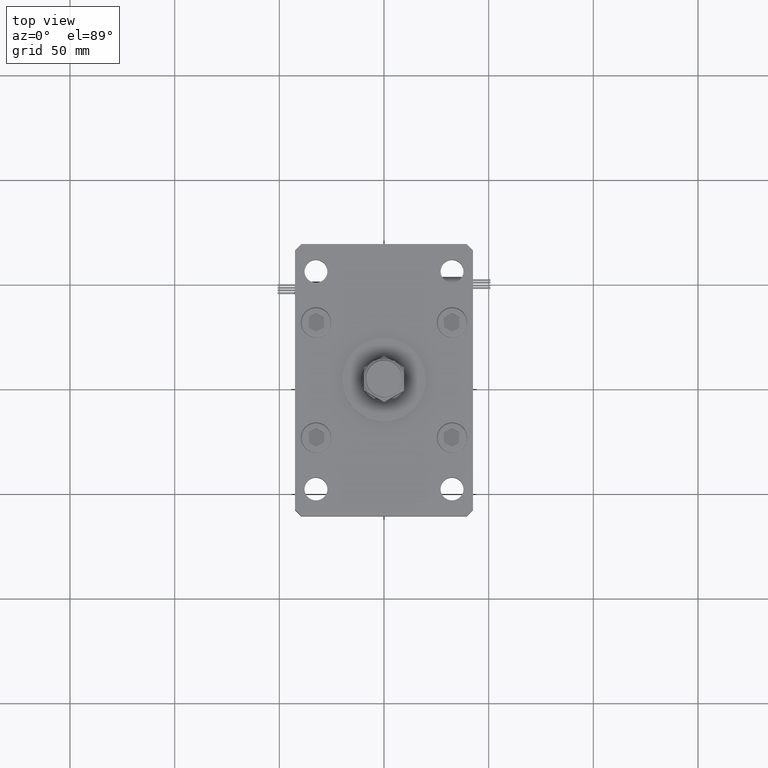
[diagram: clean part render]
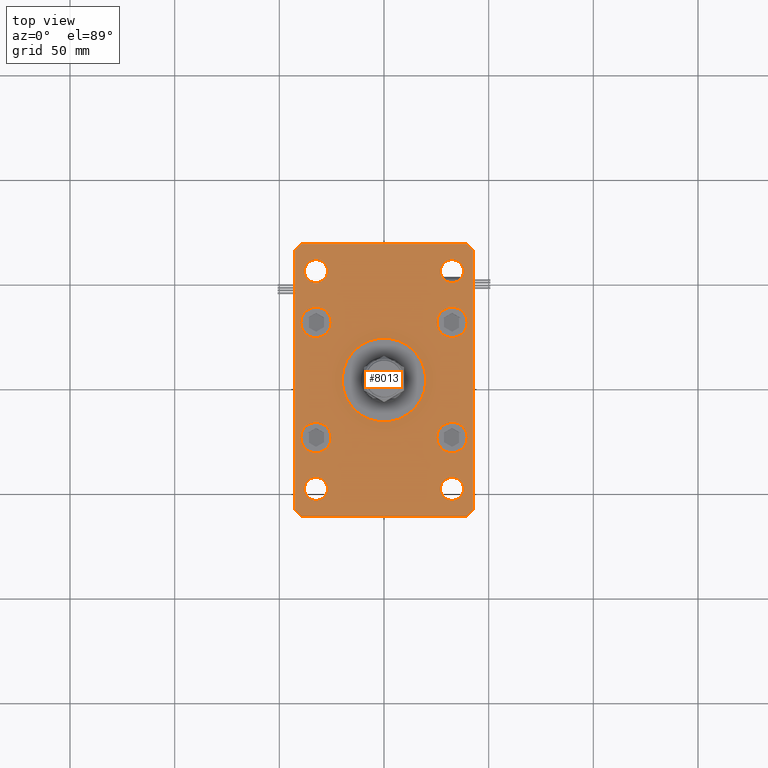
[diagram: same view with one face highlighted and labeled with its STEP entity id]
A machine part, top view. The second image highlights one B-rep face of the part: STEP entity #8013.
In plain terms, the highlighted planar face has unit normal (0, 0, 1).
Its self-contained STEP definition (entity closure, byte-faithful):
#141 = VECTOR ( 'NONE', #13035, 1000.000000000000000 ) ;
#248 = EDGE_CURVE ( 'NONE', #14208, #16014, #50137, .T. ) ;
#966 = CIRCLE ( 'NONE', #33887, 5.499999999999994671 ) ;
#1016 = AXIS2_PLACEMENT_3D ( 'NONE', #2880, #20852, #32933 ) ;
#1713 = FACE_BOUND ( 'NONE', #53152, .T. ) ;
#2161 = VERTEX_POINT ( 'NONE', #12271 ) ;
#2808 = CARTESIAN_POINT ( 'NONE',  ( -25.25000000000000000, -27.50000000000000000, 15.00000000000000000 ) ) ;
#2880 = CARTESIAN_POINT ( 'NONE',  ( 0.000000000000000000, 0.000000000000000000, 15.00000000000000000 ) ) ;
#3699 = AXIS2_PLACEMENT_3D ( 'NONE', #32445, #8614, #44539 ) ;
#3769 = DIRECTION ( 'NONE',  ( 1.000000000000000000, 0.000000000000000000, 0.000000000000000000 ) ) ;
#4337 = AXIS2_PLACEMENT_3D ( 'NONE', #38379, #37804, #28646 ) ;
#4350 = DIRECTION ( 'NONE',  ( 1.000000000000000000, 0.000000000000000000, 0.000000000000000000 ) ) ;
#4986 = DIRECTION ( 'NONE',  ( 0.000000000000000000, 0.000000000000000000, 1.000000000000000000 ) ) ;
#5238 = CARTESIAN_POINT ( 'NONE',  ( 25.25000000000000000, -27.50000000000000000, 15.00000000000000000 ) ) ;
#5364 = AXIS2_PLACEMENT_3D ( 'NONE', #5559, #4986, #37669 ) ;
#5413 = DIRECTION ( 'NONE',  ( 0.000000000000000000, 0.000000000000000000, 1.000000000000000000 ) ) ;
#5559 = CARTESIAN_POINT ( 'NONE',  ( 32.50000000000000000, 51.99999999999999289, 15.00000000000000000 ) ) ;
#6078 = DIRECTION ( 'NONE',  ( 0.000000000000000000, 0.000000000000000000, 1.000000000000000000 ) ) ;
#6482 = VECTOR ( 'NONE', #9482, 1000.000000000000000 ) ;
#6699 = AXIS2_PLACEMENT_3D ( 'NONE', #18077, #9207, #36026 ) ;
#6705 = FACE_BOUND ( 'NONE', #24073, .T. ) ;
#6723 = VERTEX_POINT ( 'NONE', #24141 ) ;
#7283 = FACE_BOUND ( 'NONE', #29444, .T. ) ;
#7587 = AXIS2_PLACEMENT_3D ( 'NONE', #22107, #13849, #40066 ) ;
#8013 = ADVANCED_FACE ( 'NONE', ( #50929, #1713, #37942, #10553, #15272, #29075, #7283, #25231, #38225, #6705 ), #46486, .T. ) ;
#8110 = CARTESIAN_POINT ( 'NONE',  ( 37.99999999999997868, -52.00000000000000711, 15.00000000000000000 ) ) ;
#8373 = DIRECTION ( 'NONE',  ( -0.7071067811865466846, -0.7071067811865483499, 0.000000000000000000 ) ) ;
#8614 = DIRECTION ( 'NONE',  ( 0.000000000000000000, 0.000000000000000000, 1.000000000000000000 ) ) ;
#8795 = ORIENTED_EDGE ( 'NONE', *, *, #13556, .T. ) ;
#9207 = DIRECTION ( 'NONE',  ( 0.000000000000000000, 0.000000000000000000, 1.000000000000000000 ) ) ;
#9356 = CARTESIAN_POINT ( 'NONE',  ( 42.50000000000000000, 62.00000000000000711, 15.00000000000000000 ) ) ;
#9482 = DIRECTION ( 'NONE',  ( 0.7071067811865483499, -0.7071067811865466846, 0.000000000000000000 ) ) ;
#9511 = CARTESIAN_POINT ( 'NONE',  ( 42.50000000000000000, -61.99999999999988631, 15.00000000000000000 ) ) ;
#9601 = ORIENTED_EDGE ( 'NONE', *, *, #23458, .T. ) ;
#9925 = DIRECTION ( 'NONE',  ( 0.000000000000000000, 0.000000000000000000, 1.000000000000000000 ) ) ;
#10478 = ORIENTED_EDGE ( 'NONE', *, *, #48572, .F. ) ;
#10553 = FACE_BOUND ( 'NONE', #50377, .T. ) ;
#10674 = DIRECTION ( 'NONE',  ( 0.000000000000000000, 0.000000000000000000, 1.000000000000000000 ) ) ;
#10941 = AXIS2_PLACEMENT_3D ( 'NONE', #41430, #6078, #24028 ) ;
#11508 = AXIS2_PLACEMENT_3D ( 'NONE', #17260, #48757, #53473 ) ;
#12061 = VERTEX_POINT ( 'NONE', #34675 ) ;
#12271 = CARTESIAN_POINT ( 'NONE',  ( 42.50000000000000000, 62.00000000000000711, 15.00000000000000000 ) ) ;
#12422 = CARTESIAN_POINT ( 'NONE',  ( -39.50000000000003553, 65.00000000000000000, 15.00000000000000000 ) ) ;
#12433 = CIRCLE ( 'NONE', #11508, 20.00000000000000000 ) ;
#12742 = ORIENTED_EDGE ( 'NONE', *, *, #36511, .F. ) ;
#12988 = ORIENTED_EDGE ( 'NONE', *, *, #58063, .F. ) ;
#13035 = DIRECTION ( 'NONE',  ( 1.000000000000000000, 1.405345600791337191E-15, 0.000000000000000000 ) ) ;
#13055 = AXIS2_PLACEMENT_3D ( 'NONE', #15876, #51824, #3769 ) ;
#13556 = EDGE_CURVE ( 'NONE', #49681, #42562, #37812, .T. ) ;
#13753 = DIRECTION ( 'NONE',  ( 0.000000000000000000, 0.000000000000000000, 1.000000000000000000 ) ) ;
#13849 = DIRECTION ( 'NONE',  ( 0.000000000000000000, 0.000000000000000000, 1.000000000000000000 ) ) ;
#14208 = VERTEX_POINT ( 'NONE', #24678 ) ;
#14269 = CARTESIAN_POINT ( 'NONE',  ( 39.50000000000002842, 65.00000000000002842, 15.00000000000000000 ) ) ;
#14351 = AXIS2_PLACEMENT_3D ( 'NONE', #20916, #29729, #57150 ) ;
#14436 = EDGE_CURVE ( 'NONE', #45788, #12061, #53991, .T. ) ;
#14683 = AXIS2_PLACEMENT_3D ( 'NONE', #50440, #27728, #41882 ) ;
#14687 = ORIENTED_EDGE ( 'NONE', *, *, #43621, .F. ) ;
#14810 = AXIS2_PLACEMENT_3D ( 'NONE', #55439, #24754, #24467 ) ;
#15272 = FACE_BOUND ( 'NONE', #17274, .T. ) ;
#15520 = CARTESIAN_POINT ( 'NONE',  ( 27.00000000000001421, 51.99999999999999289, 15.00000000000000000 ) ) ;
#15654 = VECTOR ( 'NONE', #51105, 1000.000000000000000 ) ;
#15876 = CARTESIAN_POINT ( 'NONE',  ( 32.50000000000000000, 51.99999999999999289, 15.00000000000000000 ) ) ;
#16014 = VERTEX_POINT ( 'NONE', #47984 ) ;
#16167 = CARTESIAN_POINT ( 'NONE',  ( 37.99999999999999289, 51.99999999999999289, 15.00000000000000000 ) ) ;
#16512 = LINE ( 'NONE', #40468, #57237 ) ;
#16549 = CIRCLE ( 'NONE', #57005, 5.499999999999998224 ) ;
#16803 = ORIENTED_EDGE ( 'NONE', *, *, #21861, .F. ) ;
#16839 = EDGE_CURVE ( 'NONE', #2161, #50235, #17352, .T. ) ;
#17260 = CARTESIAN_POINT ( 'NONE',  ( 0.000000000000000000, 0.000000000000000000, 15.00000000000000000 ) ) ;
#17274 = EDGE_LOOP ( 'NONE', ( #51785, #12988 ) ) ;
#17352 = LINE ( 'NONE', #9356, #43749 ) ;
#18077 = CARTESIAN_POINT ( 'NONE',  ( -32.50000000000000000, 52.00000000000000000, 15.00000000000000000 ) ) ;
#18391 = EDGE_CURVE ( 'NONE', #42562, #2161, #23630, .T. ) ;
#18489 = VECTOR ( 'NONE', #58016, 1000.000000000000000 ) ;
#18788 = ORIENTED_EDGE ( 'NONE', *, *, #46485, .F. ) ;
#18870 = CIRCLE ( 'NONE', #7587, 7.249999999999999112 ) ;
#18976 = CARTESIAN_POINT ( 'NONE',  ( -32.49999999999997868, -52.00000000000000711, 15.00000000000000000 ) ) ;
#19734 = CARTESIAN_POINT ( 'NONE',  ( 39.50000000000001421, -64.99999999999988631, 15.00000000000000000 ) ) ;
#19763 = EDGE_LOOP ( 'NONE', ( #39645, #42068 ) ) ;
#19784 = CARTESIAN_POINT ( 'NONE',  ( 32.50000000000000000, -27.50000000000000000, 15.00000000000000000 ) ) ;
#19960 = EDGE_CURVE ( 'NONE', #54664, #14208, #21201, .T. ) ;
#20014 = VERTEX_POINT ( 'NONE', #40306 ) ;
#20110 = ORIENTED_EDGE ( 'NONE', *, *, #248, .T. ) ;
#20304 = VECTOR ( 'NONE', #27456, 1000.000000000000000 ) ;
#20456 = CARTESIAN_POINT ( 'NONE',  ( 20.00000000000000000, 2.449293598294706513E-15, 15.00000000000000000 ) ) ;
#20708 = VERTEX_POINT ( 'NONE', #2808 ) ;
#20852 = DIRECTION ( 'NONE',  ( 0.000000000000000000, 0.000000000000000000, 1.000000000000000000 ) ) ;
#20916 = CARTESIAN_POINT ( 'NONE',  ( 32.50000000000000000, 27.50000000000000000, 15.00000000000000000 ) ) ;
#21201 = LINE ( 'NONE', #39446, #18489 ) ;
#21861 = EDGE_CURVE ( 'NONE', #30854, #27908, #26983, .T. ) ;
#22107 = CARTESIAN_POINT ( 'NONE',  ( -32.50000000000000000, -27.50000000000000000, 15.00000000000000000 ) ) ;
#22196 = CIRCLE ( 'NONE', #10941, 5.499999999999994671 ) ;
#22364 = CIRCLE ( 'NONE', #55315, 7.249999999999999112 ) ;
#22599 = EDGE_CURVE ( 'NONE', #50563, #37079, #27030, .T. ) ;
#22855 = ORIENTED_EDGE ( 'NONE', *, *, #42804, .F. ) ;
#23085 = CARTESIAN_POINT ( 'NONE',  ( -39.75000000000000000, -27.50000000000000000, 15.00000000000000000 ) ) ;
#23458 = EDGE_CURVE ( 'NONE', #54783, #54664, #16512, .T. ) ;
#23630 = LINE ( 'NONE', #9511, #20304 ) ;
#24028 = DIRECTION ( 'NONE',  ( 1.000000000000000000, 0.000000000000000000, 0.000000000000000000 ) ) ;
#24073 = EDGE_LOOP ( 'NONE', ( #22855, #30311 ) ) ;
#24141 = CARTESIAN_POINT ( 'NONE',  ( -38.00000000000000000, 52.00000000000000000, 15.00000000000000000 ) ) ;
#24467 = DIRECTION ( 'NONE',  ( 1.000000000000000000, 0.000000000000000000, 0.000000000000000000 ) ) ;
#24678 = CARTESIAN_POINT ( 'NONE',  ( -42.49999999999999289, -62.00000000000001421, 15.00000000000000000 ) ) ;
#24754 = DIRECTION ( 'NONE',  ( 0.000000000000000000, 0.000000000000000000, 1.000000000000000000 ) ) ;
#24938 = CARTESIAN_POINT ( 'NONE',  ( 32.49999999999997868, -52.00000000000000711, 15.00000000000000000 ) ) ;
#25037 = DIRECTION ( 'NONE',  ( 1.000000000000000000, 0.000000000000000000, 0.000000000000000000 ) ) ;
#25231 = FACE_BOUND ( 'NONE', #58202, .T. ) ;
#25400 = DIRECTION ( 'NONE',  ( 0.7071067811865459074, 0.7071067811865491270, 0.000000000000000000 ) ) ;
#25737 = VERTEX_POINT ( 'NONE', #8110 ) ;
#25968 = DIRECTION ( 'NONE',  ( 1.000000000000000000, 0.000000000000000000, 0.000000000000000000 ) ) ;
#26520 = CIRCLE ( 'NONE', #14351, 7.249999999999999112 ) ;
#26983 = CIRCLE ( 'NONE', #5364, 5.499999999999991118 ) ;
#27030 = CIRCLE ( 'NONE', #43954, 7.249999999999999112 ) ;
#27456 = DIRECTION ( 'NONE',  ( 0.000000000000000000, 1.000000000000000000, 0.000000000000000000 ) ) ;
#27728 = DIRECTION ( 'NONE',  ( 0.000000000000000000, 0.000000000000000000, 1.000000000000000000 ) ) ;
#27908 = VERTEX_POINT ( 'NONE', #16167 ) ;
#28646 = DIRECTION ( 'NONE',  ( 1.000000000000000000, 0.000000000000000000, 0.000000000000000000 ) ) ;
#28978 = ORIENTED_EDGE ( 'NONE', *, *, #22599, .F. ) ;
#29065 = ORIENTED_EDGE ( 'NONE', *, *, #38036, .F. ) ;
#29075 = FACE_OUTER_BOUND ( 'NONE', #50194, .T. ) ;
#29444 = EDGE_LOOP ( 'NONE', ( #16803, #32576 ) ) ;
#29446 = CARTESIAN_POINT ( 'NONE',  ( 42.50000000000000000, -61.99999999999988631, 15.00000000000000000 ) ) ;
#29624 = EDGE_CURVE ( 'NONE', #27908, #30854, #34710, .T. ) ;
#29729 = DIRECTION ( 'NONE',  ( 0.000000000000000000, 0.000000000000000000, 1.000000000000000000 ) ) ;
#30311 = ORIENTED_EDGE ( 'NONE', *, *, #51417, .F. ) ;
#30854 = VERTEX_POINT ( 'NONE', #15520 ) ;
#30991 = CARTESIAN_POINT ( 'NONE',  ( -39.50000000000000000, -65.00000000000000000, 15.00000000000000000 ) ) ;
#31839 = VERTEX_POINT ( 'NONE', #45790 ) ;
#31894 = CARTESIAN_POINT ( 'NONE',  ( -25.25000000000000711, 27.50000000000000000, 15.00000000000000000 ) ) ;
#32271 = VERTEX_POINT ( 'NONE', #47606 ) ;
#32445 = CARTESIAN_POINT ( 'NONE',  ( 32.49999999999997868, -52.00000000000000711, 15.00000000000000000 ) ) ;
#32576 = ORIENTED_EDGE ( 'NONE', *, *, #29624, .F. ) ;
#32833 = CIRCLE ( 'NONE', #3699, 5.499999999999998224 ) ;
#32933 = DIRECTION ( 'NONE',  ( 1.000000000000000000, 0.000000000000000000, -0.000000000000000000 ) ) ;
#33006 = EDGE_CURVE ( 'NONE', #46100, #33132, #48931, .T. ) ;
#33132 = VERTEX_POINT ( 'NONE', #39342 ) ;
#33703 = ORIENTED_EDGE ( 'NONE', *, *, #35965, .T. ) ;
#33760 = EDGE_CURVE ( 'NONE', #43801, #20708, #18870, .T. ) ;
#33887 = AXIS2_PLACEMENT_3D ( 'NONE', #18976, #5413, #25968 ) ;
#34239 = EDGE_CURVE ( 'NONE', #20014, #6723, #49012, .T. ) ;
#34565 = CIRCLE ( 'NONE', #14810, 7.249999999999999112 ) ;
#34675 = CARTESIAN_POINT ( 'NONE',  ( -20.00000000000000000, 0.000000000000000000, 15.00000000000000000 ) ) ;
#34710 = CIRCLE ( 'NONE', #13055, 5.499999999999991118 ) ;
#35297 = DIRECTION ( 'NONE',  ( -0.7071067811865417996, 0.7071067811865532349, 0.000000000000000000 ) ) ;
#35442 = AXIS2_PLACEMENT_3D ( 'NONE', #19784, #51891, #25037 ) ;
#35965 = EDGE_CURVE ( 'NONE', #16014, #49681, #43956, .T. ) ;
#36026 = DIRECTION ( 'NONE',  ( 1.000000000000000000, 0.000000000000000000, 0.000000000000000000 ) ) ;
#36131 = DIRECTION ( 'NONE',  ( 1.000000000000000000, 0.000000000000000000, 0.000000000000000000 ) ) ;
#36134 = CARTESIAN_POINT ( 'NONE',  ( 32.50000000000000000, 27.50000000000000000, 15.00000000000000000 ) ) ;
#36325 = CIRCLE ( 'NONE', #4337, 7.249999999999999112 ) ;
#36449 = VERTEX_POINT ( 'NONE', #48196 ) ;
#36511 = EDGE_CURVE ( 'NONE', #12061, #45788, #12433, .T. ) ;
#36784 = EDGE_LOOP ( 'NONE', ( #12742, #57719 ) ) ;
#37079 = VERTEX_POINT ( 'NONE', #55745 ) ;
#37200 = ORIENTED_EDGE ( 'NONE', *, *, #43879, .T. ) ;
#37529 = DIRECTION ( 'NONE',  ( 0.000000000000000000, 0.000000000000000000, 1.000000000000000000 ) ) ;
#37669 = DIRECTION ( 'NONE',  ( 1.000000000000000000, 0.000000000000000000, 0.000000000000000000 ) ) ;
#37804 = DIRECTION ( 'NONE',  ( 0.000000000000000000, 0.000000000000000000, 1.000000000000000000 ) ) ;
#37812 = LINE ( 'NONE', #38096, #38894 ) ;
#37942 = FACE_BOUND ( 'NONE', #19763, .T. ) ;
#38036 = EDGE_CURVE ( 'NONE', #37079, #50563, #26520, .T. ) ;
#38096 = CARTESIAN_POINT ( 'NONE',  ( 39.50000000000001421, -64.99999999999988631, 15.00000000000000000 ) ) ;
#38225 = FACE_BOUND ( 'NONE', #51157, .T. ) ;
#38379 = CARTESIAN_POINT ( 'NONE',  ( 32.50000000000000000, -27.50000000000000000, 15.00000000000000000 ) ) ;
#38894 = VECTOR ( 'NONE', #25400, 1000.000000000000114 ) ;
#39342 = CARTESIAN_POINT ( 'NONE',  ( -26.99999999999998579, -52.00000000000000711, 15.00000000000000000 ) ) ;
#39446 = CARTESIAN_POINT ( 'NONE',  ( -42.50000000000002132, 62.00000000000000711, 15.00000000000000000 ) ) ;
#39645 = ORIENTED_EDGE ( 'NONE', *, *, #45856, .F. ) ;
#39699 = EDGE_CURVE ( 'NONE', #36449, #50939, #36325, .T. ) ;
#40066 = DIRECTION ( 'NONE',  ( 1.000000000000000000, 0.000000000000000000, 0.000000000000000000 ) ) ;
#40306 = CARTESIAN_POINT ( 'NONE',  ( -27.00000000000000711, 52.00000000000000000, 15.00000000000000000 ) ) ;
#40468 = CARTESIAN_POINT ( 'NONE',  ( -39.50000000000003553, 65.00000000000000000, 15.00000000000000000 ) ) ;
#40528 = EDGE_CURVE ( 'NONE', #20708, #43801, #41034, .T. ) ;
#41034 = CIRCLE ( 'NONE', #14683, 7.249999999999999112 ) ;
#41430 = CARTESIAN_POINT ( 'NONE',  ( -32.50000000000000000, 52.00000000000000000, 15.00000000000000000 ) ) ;
#41634 = ORIENTED_EDGE ( 'NONE', *, *, #16839, .T. ) ;
#41882 = DIRECTION ( 'NONE',  ( 1.000000000000000000, 0.000000000000000000, 0.000000000000000000 ) ) ;
#42068 = ORIENTED_EDGE ( 'NONE', *, *, #39699, .F. ) ;
#42413 = CARTESIAN_POINT ( 'NONE',  ( 39.75000000000000000, 27.50000000000000000, 15.00000000000000000 ) ) ;
#42562 = VERTEX_POINT ( 'NONE', #29446 ) ;
#42653 = CARTESIAN_POINT ( 'NONE',  ( -37.99999999999997868, -52.00000000000000711, 15.00000000000000000 ) ) ;
#42758 = DIRECTION ( 'NONE',  ( 1.000000000000000000, 0.000000000000000000, 0.000000000000000000 ) ) ;
#42804 = EDGE_CURVE ( 'NONE', #32271, #25737, #16549, .T. ) ;
#43374 = ORIENTED_EDGE ( 'NONE', *, *, #40528, .F. ) ;
#43621 = EDGE_CURVE ( 'NONE', #6723, #20014, #22196, .T. ) ;
#43749 = VECTOR ( 'NONE', #35297, 1000.000000000000000 ) ;
#43801 = VERTEX_POINT ( 'NONE', #23085 ) ;
#43879 = EDGE_CURVE ( 'NONE', #50235, #54783, #45765, .T. ) ;
#43954 = AXIS2_PLACEMENT_3D ( 'NONE', #36134, #13753, #58260 ) ;
#43956 = LINE ( 'NONE', #30991, #141 ) ;
#44539 = DIRECTION ( 'NONE',  ( 1.000000000000000000, 0.000000000000000000, 0.000000000000000000 ) ) ;
#45272 = CARTESIAN_POINT ( 'NONE',  ( -32.49999999999997868, -52.00000000000000711, 15.00000000000000000 ) ) ;
#45765 = LINE ( 'NONE', #14269, #15654 ) ;
#45788 = VERTEX_POINT ( 'NONE', #20456 ) ;
#45790 = CARTESIAN_POINT ( 'NONE',  ( -39.75000000000000711, 27.50000000000000000, 15.00000000000000000 ) ) ;
#45856 = EDGE_CURVE ( 'NONE', #50939, #36449, #48664, .T. ) ;
#46036 = ORIENTED_EDGE ( 'NONE', *, *, #18391, .T. ) ;
#46100 = VERTEX_POINT ( 'NONE', #42653 ) ;
#46485 = EDGE_CURVE ( 'NONE', #54018, #31839, #34565, .T. ) ;
#46486 = PLANE ( 'NONE',  #1016 ) ;
#46605 = CARTESIAN_POINT ( 'NONE',  ( -42.50000000000002132, 62.00000000000000711, 15.00000000000000000 ) ) ;
#46649 = CARTESIAN_POINT ( 'NONE',  ( 0.000000000000000000, 0.000000000000000000, 15.00000000000000000 ) ) ;
#47606 = CARTESIAN_POINT ( 'NONE',  ( 26.99999999999998579, -52.00000000000000711, 15.00000000000000000 ) ) ;
#47984 = CARTESIAN_POINT ( 'NONE',  ( -39.50000000000000000, -65.00000000000000000, 15.00000000000000000 ) ) ;
#48196 = CARTESIAN_POINT ( 'NONE',  ( 39.75000000000000000, -27.50000000000000000, 15.00000000000000000 ) ) ;
#48572 = EDGE_CURVE ( 'NONE', #31839, #54018, #22364, .T. ) ;
#48664 = CIRCLE ( 'NONE', #35442, 7.249999999999999112 ) ;
#48757 = DIRECTION ( 'NONE',  ( 0.000000000000000000, 0.000000000000000000, 1.000000000000000000 ) ) ;
#48931 = CIRCLE ( 'NONE', #55587, 5.499999999999994671 ) ;
#49012 = CIRCLE ( 'NONE', #6699, 5.499999999999994671 ) ;
#49681 = VERTEX_POINT ( 'NONE', #19734 ) ;
#50137 = LINE ( 'NONE', #54267, #6482 ) ;
#50194 = EDGE_LOOP ( 'NONE', ( #33703, #8795, #46036, #41634, #37200, #9601, #55785, #20110 ) ) ;
#50235 = VERTEX_POINT ( 'NONE', #51626 ) ;
#50377 = EDGE_LOOP ( 'NONE', ( #14687, #57699 ) ) ;
#50440 = CARTESIAN_POINT ( 'NONE',  ( -32.50000000000000000, -27.50000000000000000, 15.00000000000000000 ) ) ;
#50563 = VERTEX_POINT ( 'NONE', #42413 ) ;
#50749 = CARTESIAN_POINT ( 'NONE',  ( -32.50000000000000711, 27.50000000000000000, 15.00000000000000000 ) ) ;
#50929 = FACE_BOUND ( 'NONE', #36784, .T. ) ;
#50939 = VERTEX_POINT ( 'NONE', #5238 ) ;
#51105 = DIRECTION ( 'NONE',  ( -1.000000000000000000, -3.513364001978340512E-16, 0.000000000000000000 ) ) ;
#51157 = EDGE_LOOP ( 'NONE', ( #29065, #28978 ) ) ;
#51417 = EDGE_CURVE ( 'NONE', #25737, #32271, #32833, .T. ) ;
#51626 = CARTESIAN_POINT ( 'NONE',  ( 39.50000000000002842, 65.00000000000002842, 15.00000000000000000 ) ) ;
#51785 = ORIENTED_EDGE ( 'NONE', *, *, #33006, .F. ) ;
#51824 = DIRECTION ( 'NONE',  ( 0.000000000000000000, 0.000000000000000000, 1.000000000000000000 ) ) ;
#51891 = DIRECTION ( 'NONE',  ( 0.000000000000000000, 0.000000000000000000, 1.000000000000000000 ) ) ;
#52652 = DIRECTION ( 'NONE',  ( 0.000000000000000000, 0.000000000000000000, 1.000000000000000000 ) ) ;
#53152 = EDGE_LOOP ( 'NONE', ( #10478, #18788 ) ) ;
#53457 = ORIENTED_EDGE ( 'NONE', *, *, #33760, .F. ) ;
#53473 = DIRECTION ( 'NONE',  ( 1.000000000000000000, 0.000000000000000000, 0.000000000000000000 ) ) ;
#53991 = CIRCLE ( 'NONE', #55889, 20.00000000000000000 ) ;
#54018 = VERTEX_POINT ( 'NONE', #31894 ) ;
#54267 = CARTESIAN_POINT ( 'NONE',  ( -42.49999999999999289, -62.00000000000001421, 15.00000000000000000 ) ) ;
#54664 = VERTEX_POINT ( 'NONE', #46605 ) ;
#54783 = VERTEX_POINT ( 'NONE', #12422 ) ;
#55315 = AXIS2_PLACEMENT_3D ( 'NONE', #50749, #10674, #42758 ) ;
#55439 = CARTESIAN_POINT ( 'NONE',  ( -32.50000000000000711, 27.50000000000000000, 15.00000000000000000 ) ) ;
#55587 = AXIS2_PLACEMENT_3D ( 'NONE', #45272, #9925, #4350 ) ;
#55745 = CARTESIAN_POINT ( 'NONE',  ( 25.25000000000000000, 27.50000000000000000, 15.00000000000000000 ) ) ;
#55785 = ORIENTED_EDGE ( 'NONE', *, *, #19960, .T. ) ;
#55889 = AXIS2_PLACEMENT_3D ( 'NONE', #46649, #37529, #36131 ) ;
#56787 = DIRECTION ( 'NONE',  ( 1.000000000000000000, 0.000000000000000000, 0.000000000000000000 ) ) ;
#57005 = AXIS2_PLACEMENT_3D ( 'NONE', #24938, #52652, #56787 ) ;
#57150 = DIRECTION ( 'NONE',  ( 1.000000000000000000, 0.000000000000000000, 0.000000000000000000 ) ) ;
#57237 = VECTOR ( 'NONE', #8373, 1000.000000000000000 ) ;
#57699 = ORIENTED_EDGE ( 'NONE', *, *, #34239, .F. ) ;
#57719 = ORIENTED_EDGE ( 'NONE', *, *, #14436, .F. ) ;
#58016 = DIRECTION ( 'NONE',  ( 2.238352872228137677E-16, -1.000000000000000000, 0.000000000000000000 ) ) ;
#58063 = EDGE_CURVE ( 'NONE', #33132, #46100, #966, .T. ) ;
#58202 = EDGE_LOOP ( 'NONE', ( #53457, #43374 ) ) ;
#58260 = DIRECTION ( 'NONE',  ( 1.000000000000000000, 0.000000000000000000, 0.000000000000000000 ) ) ;